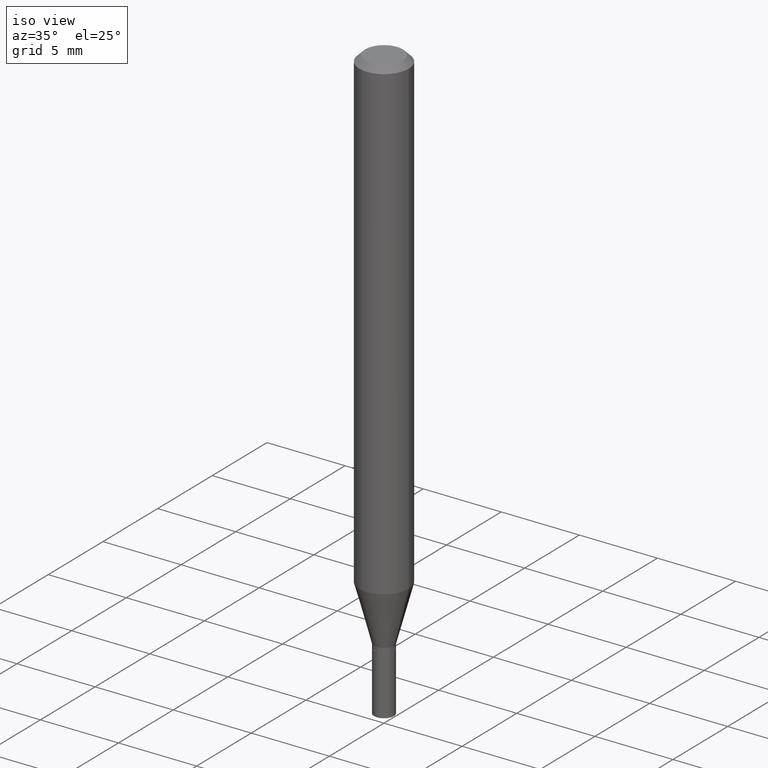
[diagram: clean part render]
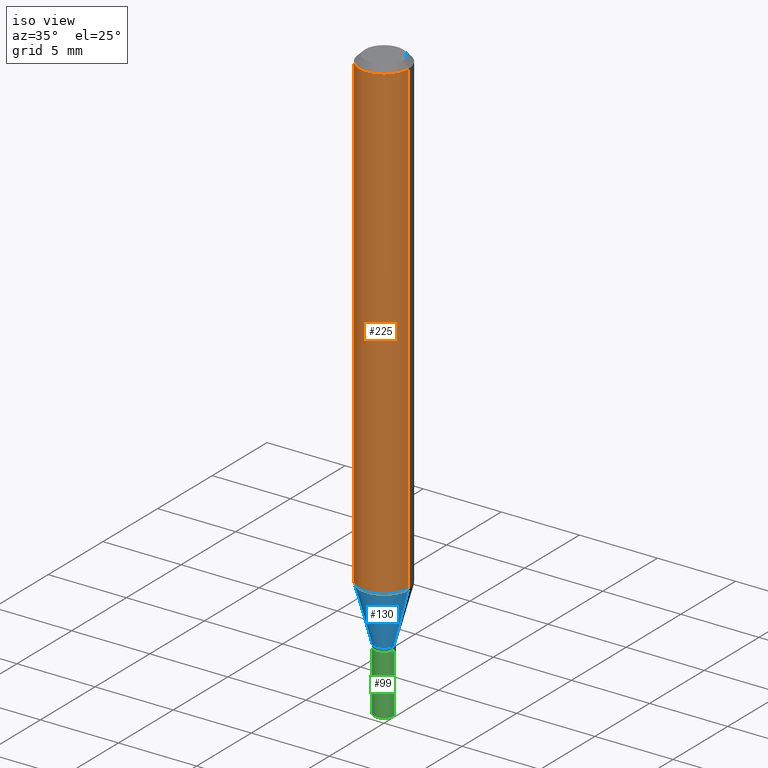
[diagram: same view with three faces highlighted in distinct colors, each labeled with its STEP entity id]
A machine part, iso view with three faces highlighted in distinct colors.
Their STEP definitions:

[orange] entity #225 — the highlighted cylindrical surface (edge-blend (fillet) strip) has radius 1.5875 mm, axis along (-0, 0, 1).
#35 = EDGE_CURVE ( 'NONE', #459, #180, #224, .T. ) ;
#54 = CARTESIAN_POINT ( 'NONE',  ( 0.06250000000000000000, -4.888073874380388472E-16, -0.01499999999999999944 ) ) ;
#66 = CARTESIAN_POINT ( 'NONE',  ( 2.934680181550293043E-29, -4.189945528415769487E-15, -1.200048094716167135 ) ) ;
#67 = VERTEX_POINT ( 'NONE', #54 ) ;
#71 = AXIS2_PLACEMENT_3D ( 'NONE', #402, #221, #358 ) ;
#82 = CYLINDRICAL_SURFACE ( 'NONE', #397, 0.06250000000000000000 ) ;
#90 = ORIENTED_EDGE ( 'NONE', *, *, #91, .F. ) ;
#91 = EDGE_CURVE ( 'NONE', #180, #67, #366, .T. ) ;
#93 = CARTESIAN_POINT ( 'NONE',  ( 0.06250000000000000000, -4.364351673553916694E-16, 3.047610484872459871E-30 ) ) ;
#103 = DIRECTION ( 'NONE',  ( -2.445468806185136597E-29, 3.491481338843145583E-15, 1.000000000000000000 ) ) ;
#158 = CARTESIAN_POINT ( 'NONE',  ( -0.06250000000000000000, 4.440892098500626162E-16, -3.074334431409316114E-30 ) ) ;
#167 = VECTOR ( 'NONE', #295, 39.37007874015748143 ) ;
#180 = VERTEX_POINT ( 'NONE', #300 ) ;
#202 = EDGE_LOOP ( 'NONE', ( #304, #409, #209, #90 ) ) ;
#209 = ORIENTED_EDGE ( 'NONE', *, *, #278, .T. ) ;
#210 = EDGE_CURVE ( 'NONE', #459, #276, #307, .T. ) ;
#220 = CARTESIAN_POINT ( 'NONE',  ( 0.000000000000000000, 0.000000000000000000, 0.000000000000000000 ) ) ;
#221 = DIRECTION ( 'NONE',  ( -2.445468806185136597E-29, 3.491481338843145583E-15, 1.000000000000000000 ) ) ;
#224 = LINE ( 'NONE', #158, #167 ) ;
#225 = ADVANCED_FACE ( 'NONE', ( #239 ), #82, .T. ) ;
#230 = DIRECTION ( 'NONE',  ( -2.445468806185136877E-29, 3.491481338843145188E-15, 1.000000000000000000 ) ) ;
#239 = FACE_OUTER_BOUND ( 'NONE', #202, .T. ) ;
#276 = VERTEX_POINT ( 'NONE', #437 ) ;
#278 = EDGE_CURVE ( 'NONE', #276, #67, #398, .T. ) ;
#284 = DIRECTION ( 'NONE',  ( -2.445468806185136597E-29, 3.491481338843145583E-15, 1.000000000000000000 ) ) ;
#295 = DIRECTION ( 'NONE',  ( -2.445468806185136877E-29, 3.491481338843145188E-15, 1.000000000000000000 ) ) ;
#300 = CARTESIAN_POINT ( 'NONE',  ( -0.06250000000000000000, -1.677069664399145667E-15, -0.01499999999999999944 ) ) ;
#304 = ORIENTED_EDGE ( 'NONE', *, *, #35, .F. ) ;
#307 = CIRCLE ( 'NONE', #344, 0.06250000000000000000 ) ;
#318 = DIRECTION ( 'NONE',  ( 1.000000000000000000, -6.982962677686266711E-15, 4.876176775795935793E-29 ) ) ;
#344 = AXIS2_PLACEMENT_3D ( 'NONE', #66, #103, #377 ) ;
#358 = DIRECTION ( 'NONE',  ( 1.000000000000000000, -6.982962677686266711E-15, 0.000000000000000000 ) ) ;
#366 = CIRCLE ( 'NONE', #71, 0.06250000000000000000 ) ;
#377 = DIRECTION ( 'NONE',  ( 1.000000000000000000, -6.982962677686270655E-15, 0.000000000000000000 ) ) ;
#397 = AXIS2_PLACEMENT_3D ( 'NONE', #220, #284, #318 ) ;
#398 = LINE ( 'NONE', #93, #453 ) ;
#402 = CARTESIAN_POINT ( 'NONE',  ( 3.668203209277705088E-31, -5.237222008264718399E-17, -0.01499999999999999944 ) ) ;
#409 = ORIENTED_EDGE ( 'NONE', *, *, #210, .T. ) ;
#437 = CARTESIAN_POINT ( 'NONE',  ( 0.06250000000000000000, -4.626380695771161156E-15, -1.200048094716167135 ) ) ;
#442 = CARTESIAN_POINT ( 'NONE',  ( -0.06250000000000000000, -3.745856318565706871E-15, -1.200048094716167135 ) ) ;
#453 = VECTOR ( 'NONE', #230, 39.37007874015748143 ) ;
#459 = VERTEX_POINT ( 'NONE', #442 ) ;

[blue] entity #130 — the highlighted conical surface has half-angle 15 deg.
#6 = VECTOR ( 'NONE', #61, 39.37007874015748143 ) ;
#8 = CARTESIAN_POINT ( 'NONE',  ( -0.02499999999999992506, -4.500949310109791320E-15, -1.340000000000000080 ) ) ;
#27 = CARTESIAN_POINT ( 'NONE',  ( 3.276928200288083533E-29, -4.678584994049815735E-15, -1.340000000000000080 ) ) ;
#36 = ORIENTED_EDGE ( 'NONE', *, *, #454, .T. ) ;
#48 = VECTOR ( 'NONE', #116, 39.37007874015748143 ) ;
#57 = AXIS2_PLACEMENT_3D ( 'NONE', #94, #154, #405 ) ;
#58 = LINE ( 'NONE', #380, #6 ) ;
#61 = DIRECTION ( 'NONE',  ( 0.2588190451025211281, 1.565188264969623940E-15, 0.9659258262890682012 ) ) ;
#66 = CARTESIAN_POINT ( 'NONE',  ( 2.934680181550293043E-29, -4.189945528415769487E-15, -1.200048094716167135 ) ) ;
#94 = CARTESIAN_POINT ( 'NONE',  ( 3.276928200288083533E-29, -4.678584994049815735E-15, -1.340000000000000080 ) ) ;
#103 = DIRECTION ( 'NONE',  ( -2.445468806185136597E-29, 3.491481338843145583E-15, 1.000000000000000000 ) ) ;
#116 = DIRECTION ( 'NONE',  ( -0.2588190451025211281, 5.211531920934548675E-15, 0.9659258262890682012 ) ) ;
#124 = CONICAL_SURFACE ( 'NONE', #146, 0.02499999999999992506, 0.2617993877991497964 ) ;
#130 = ADVANCED_FACE ( 'NONE', ( #268 ), #124, .T. ) ;
#135 = EDGE_CURVE ( 'NONE', #216, #276, #58, .T. ) ;
#146 = AXIS2_PLACEMENT_3D ( 'NONE', #27, #457, #261 ) ;
#154 = DIRECTION ( 'NONE',  ( -2.445468806185136597E-29, 3.491481338843145583E-15, 1.000000000000000000 ) ) ;
#193 = EDGE_LOOP ( 'NONE', ( #240, #36, #428, #214 ) ) ;
#206 = CIRCLE ( 'NONE', #57, 0.02499999999999992506 ) ;
#208 = CARTESIAN_POINT ( 'NONE',  ( 0.02499999999999992506, -4.853159060991972403E-15, -1.340000000000000080 ) ) ;
#210 = EDGE_CURVE ( 'NONE', #459, #276, #307, .T. ) ;
#214 = ORIENTED_EDGE ( 'NONE', *, *, #210, .F. ) ;
#216 = VERTEX_POINT ( 'NONE', #208 ) ;
#240 = ORIENTED_EDGE ( 'NONE', *, *, #266, .F. ) ;
#261 = DIRECTION ( 'NONE',  ( 1.000000000000000000, -6.982962677686276177E-15, 0.000000000000000000 ) ) ;
#266 = EDGE_CURVE ( 'NONE', #424, #459, #316, .T. ) ;
#268 = FACE_OUTER_BOUND ( 'NONE', #193, .T. ) ;
#276 = VERTEX_POINT ( 'NONE', #437 ) ;
#307 = CIRCLE ( 'NONE', #344, 0.06250000000000000000 ) ;
#316 = LINE ( 'NONE', #8, #48 ) ;
#344 = AXIS2_PLACEMENT_3D ( 'NONE', #66, #103, #377 ) ;
#363 = CARTESIAN_POINT ( 'NONE',  ( -0.02499999999999992506, -4.123402814337749095E-15, -1.340000000000000080 ) ) ;
#377 = DIRECTION ( 'NONE',  ( 1.000000000000000000, -6.982962677686270655E-15, 0.000000000000000000 ) ) ;
#380 = CARTESIAN_POINT ( 'NONE',  ( 0.02499999999999992506, -4.853159060991972403E-15, -1.340000000000000080 ) ) ;
#405 = DIRECTION ( 'NONE',  ( 1.000000000000000000, -6.982962677686276177E-15, 0.000000000000000000 ) ) ;
#424 = VERTEX_POINT ( 'NONE', #363 ) ;
#428 = ORIENTED_EDGE ( 'NONE', *, *, #135, .T. ) ;
#437 = CARTESIAN_POINT ( 'NONE',  ( 0.06250000000000000000, -4.626380695771161156E-15, -1.200048094716167135 ) ) ;
#442 = CARTESIAN_POINT ( 'NONE',  ( -0.06250000000000000000, -3.745856318565706871E-15, -1.200048094716167135 ) ) ;
#454 = EDGE_CURVE ( 'NONE', #424, #216, #206, .T. ) ;
#457 = DIRECTION ( 'NONE',  ( -2.445468806185136597E-29, 3.491481338843145583E-15, 1.000000000000000000 ) ) ;
#459 = VERTEX_POINT ( 'NONE', #442 ) ;

[green] entity #99 — the highlighted cylindrical surface (edge-blend (fillet) strip) has radius 0.635 mm, axis along (-0, 0, 1).
#10 = CARTESIAN_POINT ( 'NONE',  ( -0.02500000000000000139, -4.797725223911457182E-15, -1.500000000000000222 ) ) ;
#14 = CIRCLE ( 'NONE', #353, 0.02500000000000000139 ) ;
#21 = LINE ( 'NONE', #412, #213 ) ;
#28 = ORIENTED_EDGE ( 'NONE', *, *, #337, .T. ) ;
#49 = VERTEX_POINT ( 'NONE', #10 ) ;
#56 = CARTESIAN_POINT ( 'NONE',  ( 0.02500000000000000139, -1.745740669421566924E-16, 1.219044193948984123E-30 ) ) ;
#60 = EDGE_CURVE ( 'NONE', #329, #174, #357, .T. ) ;
#70 = ORIENTED_EDGE ( 'NONE', *, *, #179, .F. ) ;
#76 = FACE_OUTER_BOUND ( 'NONE', #446, .T. ) ;
#83 = DIRECTION ( 'NONE',  ( 1.000000000000000000, -6.982962677686267499E-15, 4.876176775795936353E-29 ) ) ;
#99 = ADVANCED_FACE ( 'NONE', ( #76 ), #393, .T. ) ;
#106 = CARTESIAN_POINT ( 'NONE',  ( 3.301382888349935078E-29, -4.713499807438246596E-15, -1.350000000000000089 ) ) ;
#140 = VERTEX_POINT ( 'NONE', #303 ) ;
#141 = CARTESIAN_POINT ( 'NONE',  ( 3.668203209277704895E-29, -5.237222008264718177E-15, -1.500000000000000222 ) ) ;
#147 = DIRECTION ( 'NONE',  ( -2.445468806185136877E-29, 3.491481338843145188E-15, 1.000000000000000000 ) ) ;
#159 = VECTOR ( 'NONE', #232, 39.37007874015748143 ) ;
#174 = VERTEX_POINT ( 'NONE', #370 ) ;
#179 = EDGE_CURVE ( 'NONE', #140, #174, #14, .T. ) ;
#205 = DIRECTION ( 'NONE',  ( -2.445468806185136597E-29, 3.491481338843145583E-15, 1.000000000000000000 ) ) ;
#213 = VECTOR ( 'NONE', #147, 39.37007874015748143 ) ;
#226 = AXIS2_PLACEMENT_3D ( 'NONE', #386, #389, #83 ) ;
#232 = DIRECTION ( 'NONE',  ( -2.445468806185136877E-29, 3.491481338843145188E-15, 1.000000000000000000 ) ) ;
#277 = DIRECTION ( 'NONE',  ( -2.445468806185136597E-29, 3.491481338843145583E-15, 1.000000000000000000 ) ) ;
#279 = AXIS2_PLACEMENT_3D ( 'NONE', #141, #277, #315 ) ;
#301 = ORIENTED_EDGE ( 'NONE', *, *, #60, .T. ) ;
#302 = EDGE_CURVE ( 'NONE', #49, #140, #21, .T. ) ;
#303 = CARTESIAN_POINT ( 'NONE',  ( -0.02500000000000000139, -4.797725223911457182E-15, -1.350000000000000089 ) ) ;
#314 = CIRCLE ( 'NONE', #279, 0.02500000000000000139 ) ;
#315 = DIRECTION ( 'NONE',  ( 1.000000000000000000, -6.982962677686254878E-15, 0.000000000000000000 ) ) ;
#329 = VERTEX_POINT ( 'NONE', #433 ) ;
#337 = EDGE_CURVE ( 'NONE', #49, #329, #314, .T. ) ;
#338 = DIRECTION ( 'NONE',  ( 1.000000000000000000, -6.982962677686254878E-15, 0.000000000000000000 ) ) ;
#342 = ORIENTED_EDGE ( 'NONE', *, *, #302, .F. ) ;
#353 = AXIS2_PLACEMENT_3D ( 'NONE', #106, #205, #338 ) ;
#357 = LINE ( 'NONE', #56, #159 ) ;
#370 = CARTESIAN_POINT ( 'NONE',  ( 0.02500000000000000139, -4.888073874380403263E-15, -1.350000000000000089 ) ) ;
#386 = CARTESIAN_POINT ( 'NONE',  ( 0.000000000000000000, 0.000000000000000000, 0.000000000000000000 ) ) ;
#389 = DIRECTION ( 'NONE',  ( -2.445468806185136597E-29, 3.491481338843145583E-15, 1.000000000000000000 ) ) ;
#393 = CYLINDRICAL_SURFACE ( 'NONE', #226, 0.02500000000000000139 ) ;
#412 = CARTESIAN_POINT ( 'NONE',  ( -0.02500000000000000139, 1.776356839400250563E-16, -1.229733772563726656E-30 ) ) ;
#433 = CARTESIAN_POINT ( 'NONE',  ( 0.02500000000000000139, -5.411796075206874844E-15, -1.500000000000000222 ) ) ;
#446 = EDGE_LOOP ( 'NONE', ( #342, #28, #301, #70 ) ) ;